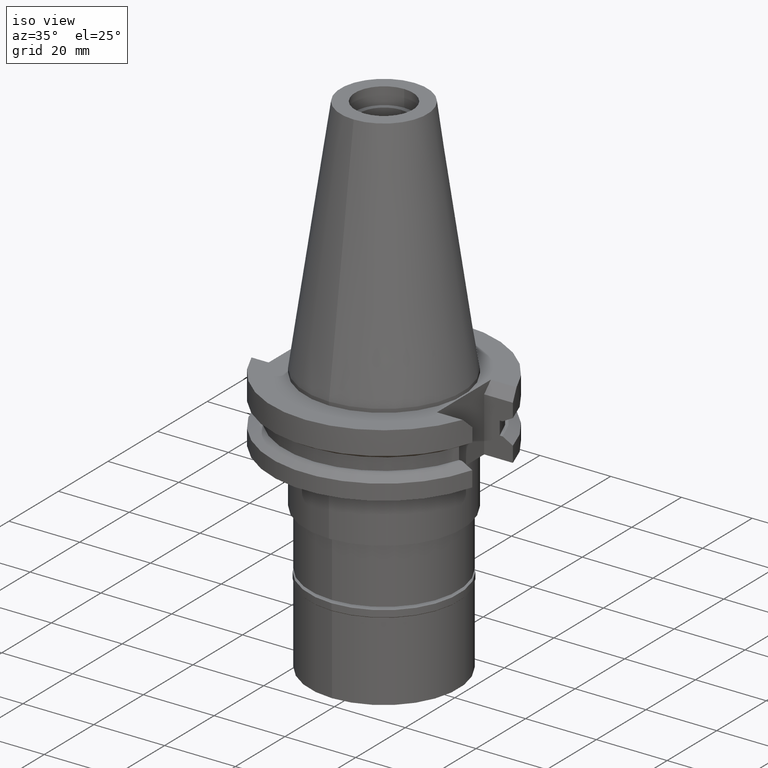
[diagram: clean part render]
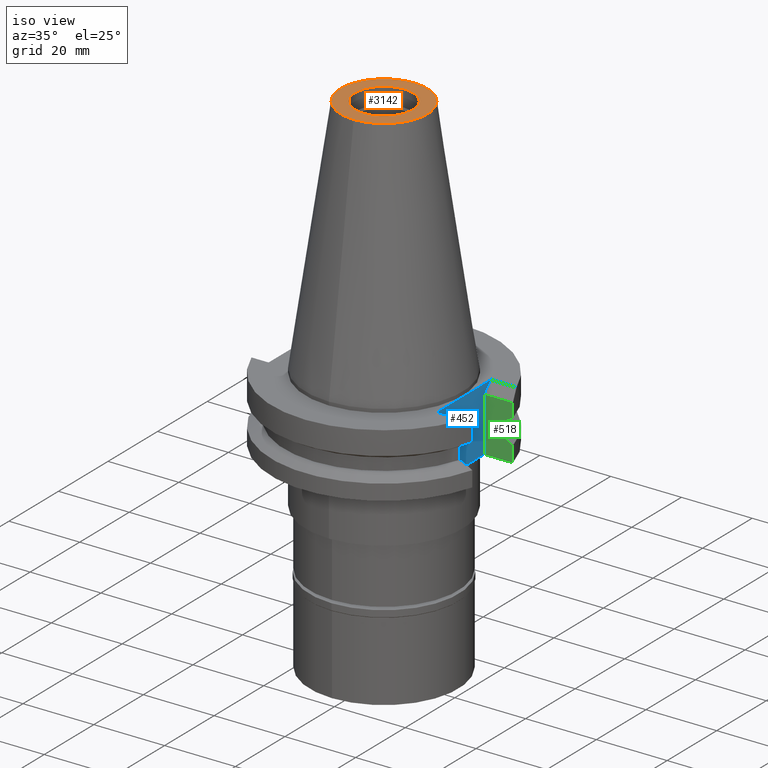
[diagram: same view with three faces highlighted in distinct colors, each labeled with its STEP entity id]
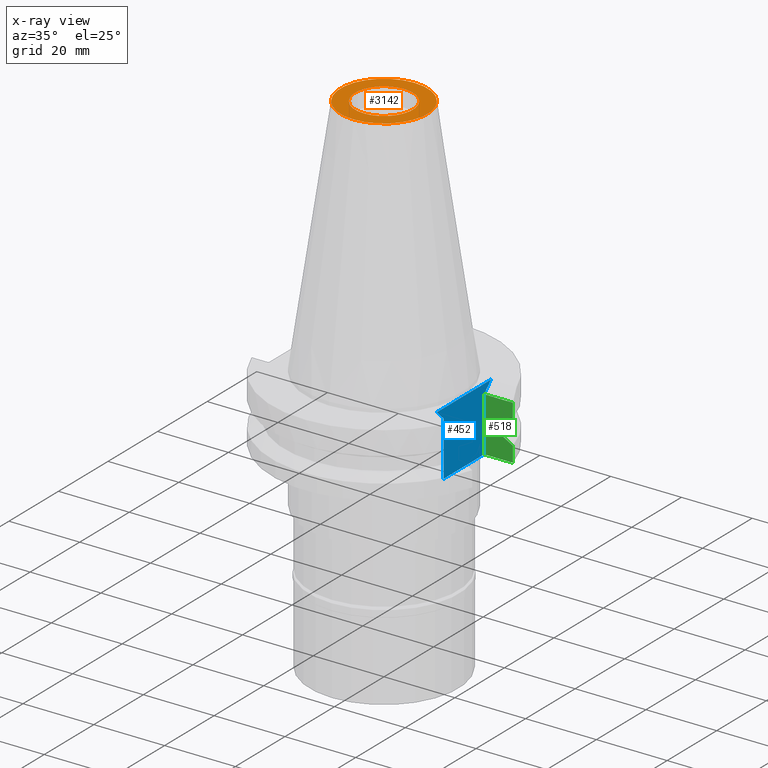
[diagram: x-ray of the same camera — body ghosted, the three highlighted faces saturated]
A machine part, iso view with three faces highlighted in distinct colors.
The next image is the same camera in x-ray (body ghosted, the three faces saturated) — at least one of them is partly hidden behind the body in this view.
Their STEP definitions:

[orange] entity #3142 — the highlighted planar face has unit normal (0, 0, -1).
#77 = DIRECTION ( 'NONE',  ( 0.0000000000000000000, 1.000000000000000000, 0.0000000000000000000 ) ) ;
#96 = DIRECTION ( 'NONE',  ( 0.0000000000000000000, -1.000000000000000000, 0.0000000000000000000 ) ) ;
#206 = DIRECTION ( 'NONE',  ( 0.0000000000000000000, 0.0000000000000000000, -1.000000000000000000 ) ) ;
#353 = CARTESIAN_POINT ( 'NONE',  ( 0.0000000000000000000, 8.160000000000000142, 68.25000000000000000 ) ) ;
#370 = CIRCLE ( 'NONE', #891, 8.160000000000000142 ) ;
#442 = CARTESIAN_POINT ( 'NONE',  ( 0.0000000000000000000, 0.0000000000000000000, 68.25000000000000000 ) ) ;
#476 = DIRECTION ( 'NONE',  ( 0.0000000000000000000, 0.0000000000000000000, -1.000000000000000000 ) ) ;
#529 = AXIS2_PLACEMENT_3D ( 'NONE', #1730, #476, #77 ) ;
#590 = ORIENTED_EDGE ( 'NONE', *, *, #755, .F. ) ;
#695 = CIRCLE ( 'NONE', #3196, 12.27186888070000137 ) ;
#728 = EDGE_CURVE ( 'NONE', #1497, #2953, #2339, .T. ) ;
#755 = EDGE_CURVE ( 'NONE', #915, #2225, #370, .T. ) ;
#836 = CARTESIAN_POINT ( 'NONE',  ( 0.0000000000000000000, 0.0000000000000000000, 68.25000000000000000 ) ) ;
#871 = FACE_BOUND ( 'NONE', #3069, .T. ) ;
#891 = AXIS2_PLACEMENT_3D ( 'NONE', #2372, #3039, #2249 ) ;
#911 = DIRECTION ( 'NONE',  ( 0.0000000000000000000, 0.0000000000000000000, 1.000000000000000000 ) ) ;
#915 = VERTEX_POINT ( 'NONE', #2525 ) ;
#1095 = DIRECTION ( 'NONE',  ( 0.0000000000000000000, 0.0000000000000000000, -1.000000000000000000 ) ) ;
#1140 = ORIENTED_EDGE ( 'NONE', *, *, #2029, .F. ) ;
#1158 = ORIENTED_EDGE ( 'NONE', *, *, #1189, .F. ) ;
#1189 = EDGE_CURVE ( 'NONE', #2225, #915, #1697, .T. ) ;
#1255 = EDGE_LOOP ( 'NONE', ( #2981, #1140 ) ) ;
#1497 = VERTEX_POINT ( 'NONE', #2899 ) ;
#1697 = CIRCLE ( 'NONE', #3248, 8.160000000000000142 ) ;
#1730 = CARTESIAN_POINT ( 'NONE',  ( 0.0000000000000000000, 0.0000000000000000000, 68.25000000000000000 ) ) ;
#1815 = DIRECTION ( 'NONE',  ( 0.0000000000000000000, -1.000000000000000000, 0.0000000000000000000 ) ) ;
#1936 = DIRECTION ( 'NONE',  ( 0.0000000000000000000, 1.000000000000000000, 0.0000000000000000000 ) ) ;
#2029 = EDGE_CURVE ( 'NONE', #2953, #1497, #695, .T. ) ;
#2225 = VERTEX_POINT ( 'NONE', #353 ) ;
#2249 = DIRECTION ( 'NONE',  ( 0.0000000000000000000, -1.000000000000000000, 0.0000000000000000000 ) ) ;
#2339 = CIRCLE ( 'NONE', #529, 12.27186888070000137 ) ;
#2341 = PLANE ( 'NONE',  #2979 ) ;
#2372 = CARTESIAN_POINT ( 'NONE',  ( 0.0000000000000000000, 0.0000000000000000000, 68.25000000000000000 ) ) ;
#2525 = CARTESIAN_POINT ( 'NONE',  ( 0.0000000000000000000, -8.160000000000000142, 68.25000000000000000 ) ) ;
#2790 = CARTESIAN_POINT ( 'NONE',  ( 0.0000000000000000000, -12.27186888070000137, 68.25000000000000000 ) ) ;
#2899 = CARTESIAN_POINT ( 'NONE',  ( 0.0000000000000000000, 12.27186888070000137, 68.25000000000000000 ) ) ;
#2953 = VERTEX_POINT ( 'NONE', #2790 ) ;
#2979 = AXIS2_PLACEMENT_3D ( 'NONE', #836, #1095, #1815 ) ;
#2981 = ORIENTED_EDGE ( 'NONE', *, *, #728, .F. ) ;
#3039 = DIRECTION ( 'NONE',  ( 0.0000000000000000000, 0.0000000000000000000, 1.000000000000000000 ) ) ;
#3069 = EDGE_LOOP ( 'NONE', ( #1158, #590 ) ) ;
#3142 = ADVANCED_FACE ( 'NONE', ( #3157, #871 ), #2341, .F. ) ;
#3157 = FACE_OUTER_BOUND ( 'NONE', #1255, .T. ) ;
#3196 = AXIS2_PLACEMENT_3D ( 'NONE', #442, #206, #96 ) ;
#3246 = CARTESIAN_POINT ( 'NONE',  ( 0.0000000000000000000, 0.0000000000000000000, 68.25000000000000000 ) ) ;
#3248 = AXIS2_PLACEMENT_3D ( 'NONE', #3246, #911, #1936 ) ;

[blue] entity #452 — the highlighted planar face has unit normal (1, 0, 0).
#78 = LINE ( 'NONE', #1084, #2362 ) ;
#100 = VECTOR ( 'NONE', #569, 1000.000000000000000 ) ;
#121 = LINE ( 'NONE', #898, #265 ) ;
#146 = CARTESIAN_POINT ( 'NONE',  ( 22.57000000000000028, 10.89000000000000057, -1.000000000000000000 ) ) ;
#240 = ORIENTED_EDGE ( 'NONE', *, *, #2325, .F. ) ;
#265 = VECTOR ( 'NONE', #2438, 1000.000000000000000 ) ;
#299 = FACE_OUTER_BOUND ( 'NONE', #2150, .T. ) ;
#334 = EDGE_CURVE ( 'NONE', #1374, #2935, #1839, .T. ) ;
#399 = CARTESIAN_POINT ( 'NONE',  ( 22.57000000000000028, -8.189999999999999503, -3.700000000000000178 ) ) ;
#419 = ORIENTED_EDGE ( 'NONE', *, *, #2737, .F. ) ;
#452 = ADVANCED_FACE ( 'NONE', ( #299 ), #2344, .T. ) ;
#569 = DIRECTION ( 'NONE',  ( 0.0000000000000000000, -1.000000000000000000, 0.0000000000000000000 ) ) ;
#586 = CARTESIAN_POINT ( 'NONE',  ( 22.57000000000000028, 10.89000000000000057, -1.000000000000000000 ) ) ;
#671 = ORIENTED_EDGE ( 'NONE', *, *, #1701, .F. ) ;
#747 = CARTESIAN_POINT ( 'NONE',  ( 22.57000000000000028, 10.89000000000000057, -1.000000000000000000 ) ) ;
#789 = ORIENTED_EDGE ( 'NONE', *, *, #334, .T. ) ;
#892 = DIRECTION ( 'NONE',  ( 0.0000000000000000000, -1.000000000000000000, 0.0000000000000000000 ) ) ;
#898 = CARTESIAN_POINT ( 'NONE',  ( 22.57000000000000028, 8.189999999999999503, -3.700000000000000178 ) ) ;
#928 = CARTESIAN_POINT ( 'NONE',  ( 22.57000000000000028, 8.189999999999999503, -19.05000000000000071 ) ) ;
#948 = AXIS2_PLACEMENT_3D ( 'NONE', #1591, #1766, #1263 ) ;
#1084 = CARTESIAN_POINT ( 'NONE',  ( 22.57000000000000028, -8.189999999999999503, -19.05000000000000071 ) ) ;
#1263 = DIRECTION ( 'NONE',  ( 0.0000000000000000000, 1.000000000000000000, 0.0000000000000000000 ) ) ;
#1374 = VERTEX_POINT ( 'NONE', #747 ) ;
#1390 = DIRECTION ( 'NONE',  ( 0.0000000000000000000, -0.7071067811865474617, -0.7071067811865474617 ) ) ;
#1420 = DIRECTION ( 'NONE',  ( 0.0000000000000000000, -0.7071067811865474617, 0.7071067811865474617 ) ) ;
#1591 = CARTESIAN_POINT ( 'NONE',  ( 22.57000000000000028, 0.0000000000000000000, 0.0000000000000000000 ) ) ;
#1643 = LINE ( 'NONE', #2161, #2717 ) ;
#1701 = EDGE_CURVE ( 'NONE', #1908, #2935, #3223, .T. ) ;
#1766 = DIRECTION ( 'NONE',  ( 1.000000000000000000, 0.0000000000000000000, 0.0000000000000000000 ) ) ;
#1782 = EDGE_CURVE ( 'NONE', #1374, #2875, #2913, .T. ) ;
#1789 = ORIENTED_EDGE ( 'NONE', *, *, #1782, .F. ) ;
#1839 = LINE ( 'NONE', #586, #100 ) ;
#1889 = ORIENTED_EDGE ( 'NONE', *, *, #3234, .F. ) ;
#1894 = VERTEX_POINT ( 'NONE', #2484 ) ;
#1908 = VERTEX_POINT ( 'NONE', #1974 ) ;
#1974 = CARTESIAN_POINT ( 'NONE',  ( 22.57000000000000028, -8.189999999999999503, -3.700000000000000178 ) ) ;
#2150 = EDGE_LOOP ( 'NONE', ( #1889, #1789, #789, #671, #419, #240 ) ) ;
#2161 = CARTESIAN_POINT ( 'NONE',  ( 22.57000000000000028, 8.189999999999999503, -19.05000000000000071 ) ) ;
#2311 = CARTESIAN_POINT ( 'NONE',  ( 22.57000000000000028, -10.89000000000000057, -1.000000000000000000 ) ) ;
#2325 = EDGE_CURVE ( 'NONE', #3253, #1894, #1643, .T. ) ;
#2344 = PLANE ( 'NONE',  #948 ) ;
#2362 = VECTOR ( 'NONE', #2877, 1000.000000000000000 ) ;
#2438 = DIRECTION ( 'NONE',  ( 0.0000000000000000000, 0.0000000000000000000, -1.000000000000000000 ) ) ;
#2484 = CARTESIAN_POINT ( 'NONE',  ( 22.57000000000000028, -8.189999999999999503, -19.05000000000000071 ) ) ;
#2610 = VECTOR ( 'NONE', #1420, 1000.000000000000114 ) ;
#2717 = VECTOR ( 'NONE', #892, 1000.000000000000000 ) ;
#2737 = EDGE_CURVE ( 'NONE', #1894, #1908, #78, .T. ) ;
#2875 = VERTEX_POINT ( 'NONE', #3201 ) ;
#2877 = DIRECTION ( 'NONE',  ( 0.0000000000000000000, 0.0000000000000000000, 1.000000000000000000 ) ) ;
#2913 = LINE ( 'NONE', #146, #3254 ) ;
#2935 = VERTEX_POINT ( 'NONE', #2311 ) ;
#3201 = CARTESIAN_POINT ( 'NONE',  ( 22.57000000000000028, 8.189999999999999503, -3.700000000000000178 ) ) ;
#3223 = LINE ( 'NONE', #399, #2610 ) ;
#3234 = EDGE_CURVE ( 'NONE', #2875, #3253, #121, .T. ) ;
#3253 = VERTEX_POINT ( 'NONE', #928 ) ;
#3254 = VECTOR ( 'NONE', #1390, 1000.000000000000114 ) ;

[green] entity #518 — the highlighted planar face has unit normal (0, 1, 0).
#121 = LINE ( 'NONE', #898, #265 ) ;
#179 = CARTESIAN_POINT ( 'NONE',  ( 28.70626002890957551, 8.189998716289446534, -8.697957601314895371 ) ) ;
#264 = VECTOR ( 'NONE', #3203, 1000.000000000000000 ) ;
#265 = VECTOR ( 'NONE', #2438, 1000.000000000000000 ) ;
#296 = LINE ( 'NONE', #1082, #897 ) ;
#361 = ORIENTED_EDGE ( 'NONE', *, *, #2345, .T. ) ;
#373 = VECTOR ( 'NONE', #1107, 1000.000000000000000 ) ;
#400 = CARTESIAN_POINT ( 'NONE',  ( 30.67550165959999831, 8.189999873741001579, -7.601334359228999915 ) ) ;
#402 = CARTESIAN_POINT ( 'NONE',  ( 22.57000000000000028, 8.189999999999999503, -19.05000000000000071 ) ) ;
#420 = LINE ( 'NONE', #402, #2985 ) ;
#423 = VERTEX_POINT ( 'NONE', #2780 ) ;
#437 = ORIENTED_EDGE ( 'NONE', *, *, #913, .T. ) ;
#440 = EDGE_LOOP ( 'NONE', ( #2113, #437, #1162, #1984, #2487, #2171, #361, #2011, #3229, #2857 ) ) ;
#490 = CARTESIAN_POINT ( 'NONE',  ( 22.57000000000000028, 8.189999999999999503, -19.05000000000000071 ) ) ;
#501 = B_SPLINE_CURVE_WITH_KNOTS ( 'NONE', 3,
 ( #1431, #2466, #179, #3218 ),
 .UNSPECIFIED., .F., .F.,
 ( 4, 4 ),
 ( 0.0000000000000000000, 1.000000000000000000 ),
 .UNSPECIFIED. ) ;
#518 = ADVANCED_FACE ( 'NONE', ( #2040 ), #3068, .F. ) ;
#574 = VERTEX_POINT ( 'NONE', #2522 ) ;
#624 = CARTESIAN_POINT ( 'NONE',  ( 30.67550162588999640, 8.189999999999999503, -3.700000000000000178 ) ) ;
#626 = EDGE_CURVE ( 'NONE', #423, #820, #1338, .T. ) ;
#674 = EDGE_CURVE ( 'NONE', #423, #574, #3288, .T. ) ;
#788 = CARTESIAN_POINT ( 'NONE',  ( 30.67550165959999831, 8.189999873730000601, -14.65366564072000166 ) ) ;
#820 = VERTEX_POINT ( 'NONE', #1529 ) ;
#832 = LINE ( 'NONE', #624, #373 ) ;
#839 = VECTOR ( 'NONE', #1979, 1000.000000000000000 ) ;
#897 = VECTOR ( 'NONE', #1063, 1000.000000000000000 ) ;
#898 = CARTESIAN_POINT ( 'NONE',  ( 22.57000000000000028, 8.189999999999999503, -3.700000000000000178 ) ) ;
#907 = LINE ( 'NONE', #400, #2621 ) ;
#913 = EDGE_CURVE ( 'NONE', #2745, #574, #2447, .T. ) ;
#928 = CARTESIAN_POINT ( 'NONE',  ( 22.57000000000000028, 8.189999999999999503, -19.05000000000000071 ) ) ;
#972 = EDGE_CURVE ( 'NONE', #1341, #2875, #832, .T. ) ;
#979 = DIRECTION ( 'NONE',  ( 1.000000000000000000, 0.0000000000000000000, 0.0000000000000000000 ) ) ;
#1063 = DIRECTION ( 'NONE',  ( 7.668471290186996841E-09, -2.872155806557998615E-08, 0.9999999999999995559 ) ) ;
#1082 = CARTESIAN_POINT ( 'NONE',  ( 30.67550162588999640, 8.189999999999999503, -19.05000000000000071 ) ) ;
#1107 = DIRECTION ( 'NONE',  ( -1.000000000000000000, 0.0000000000000000000, 0.0000000000000000000 ) ) ;
#1148 = EDGE_CURVE ( 'NONE', #3253, #1702, #420, .T. ) ;
#1162 = ORIENTED_EDGE ( 'NONE', *, *, #674, .F. ) ;
#1254 = CARTESIAN_POINT ( 'NONE',  ( 28.73104665319000262, 8.190000282372999152, -13.57124083493999933 ) ) ;
#1329 = CARTESIAN_POINT ( 'NONE',  ( 27.78617706758999972, 8.189999358852999123, -9.207500000000999663 ) ) ;
#1338 = LINE ( 'NONE', #2448, #264 ) ;
#1341 = VERTEX_POINT ( 'NONE', #2003 ) ;
#1398 = VERTEX_POINT ( 'NONE', #2783 ) ;
#1431 = CARTESIAN_POINT ( 'NONE',  ( 30.67550165959999831, 8.189999873741001579, -7.601334359228999915 ) ) ;
#1496 = DIRECTION ( 'NONE',  ( -0.0000000000000000000, 1.000000000000000000, 0.0000000000000000000 ) ) ;
#1498 = CARTESIAN_POINT ( 'NONE',  ( 28.09939284342999954, 8.189999358838999655, -13.22095730016999937 ) ) ;
#1517 = CARTESIAN_POINT ( 'NONE',  ( 27.78617706798999620, 8.189999358838999655, -13.04749999999999943 ) ) ;
#1529 = CARTESIAN_POINT ( 'NONE',  ( 26.96361066326000255, 8.189999999999999503, -9.207499999999999574 ) ) ;
#1669 = DIRECTION ( 'NONE',  ( -8.640691265596996120E-09, 3.236311574589998303E-08, 0.9999999999999994449 ) ) ;
#1702 = VERTEX_POINT ( 'NONE', #1890 ) ;
#1743 = CARTESIAN_POINT ( 'NONE',  ( 29.69414548143000232, 8.189999973438000680, -14.10664736164999944 ) ) ;
#1818 = VECTOR ( 'NONE', #2804, 1000.000000000000000 ) ;
#1890 = CARTESIAN_POINT ( 'NONE',  ( 30.67550162588999640, 8.189999999999999503, -19.05000000000000071 ) ) ;
#1979 = DIRECTION ( 'NONE',  ( 0.9999999999996962430, -7.794644236045972119E-07, 4.103107026326985890E-13 ) ) ;
#1984 = ORIENTED_EDGE ( 'NONE', *, *, #626, .T. ) ;
#2003 = CARTESIAN_POINT ( 'NONE',  ( 30.67550162588999640, 8.189999999999999503, -3.700000000000000178 ) ) ;
#2011 = ORIENTED_EDGE ( 'NONE', *, *, #972, .T. ) ;
#2013 = LINE ( 'NONE', #3045, #1818 ) ;
#2040 = FACE_OUTER_BOUND ( 'NONE', #440, .T. ) ;
#2113 = ORIENTED_EDGE ( 'NONE', *, *, #3126, .T. ) ;
#2171 = ORIENTED_EDGE ( 'NONE', *, *, #2894, .F. ) ;
#2345 = EDGE_CURVE ( 'NONE', #1398, #1341, #907, .T. ) ;
#2438 = DIRECTION ( 'NONE',  ( 0.0000000000000000000, 0.0000000000000000000, -1.000000000000000000 ) ) ;
#2447 = B_SPLINE_CURVE_WITH_KNOTS ( 'NONE', 3,
 ( #788, #3087, #1743, #1254, #1498, #1517 ),
 .UNSPECIFIED., .F., .F.,
 ( 4, 1, 1, 4 ),
 ( 0.0000000000000000000, 0.3333333333333000081, 0.6666666666667000474, 1.000000000000000000 ),
 .UNSPECIFIED. ) ;
#2448 = CARTESIAN_POINT ( 'NONE',  ( 26.96361066326000255, 8.189999999999999503, -13.04749999999999943 ) ) ;
#2466 = CARTESIAN_POINT ( 'NONE',  ( 29.66936065556240365, 8.189999747574754352, -8.162570082752392153 ) ) ;
#2487 = ORIENTED_EDGE ( 'NONE', *, *, #3043, .T. ) ;
#2522 = CARTESIAN_POINT ( 'NONE',  ( 27.78617706798999620, 8.189999358838999655, -13.04749999999999943 ) ) ;
#2553 = AXIS2_PLACEMENT_3D ( 'NONE', #490, #1496, #979 ) ;
#2621 = VECTOR ( 'NONE', #1669, 1000.000000000000114 ) ;
#2733 = CARTESIAN_POINT ( 'NONE',  ( 30.67550165959999831, 8.189999873730000601, -14.65366564072000166 ) ) ;
#2735 = VERTEX_POINT ( 'NONE', #1329 ) ;
#2745 = VERTEX_POINT ( 'NONE', #2733 ) ;
#2780 = CARTESIAN_POINT ( 'NONE',  ( 26.96361066326000255, 8.189999999999999503, -13.04749999999999943 ) ) ;
#2783 = CARTESIAN_POINT ( 'NONE',  ( 30.67550165959999831, 8.189999873741001579, -7.601334359228999915 ) ) ;
#2804 = DIRECTION ( 'NONE',  ( 0.9999999999996962430, -7.794477092218971773E-07, -1.025776757080996269E-12 ) ) ;
#2857 = ORIENTED_EDGE ( 'NONE', *, *, #1148, .T. ) ;
#2875 = VERTEX_POINT ( 'NONE', #3201 ) ;
#2894 = EDGE_CURVE ( 'NONE', #1398, #2735, #501, .T. ) ;
#2934 = DIRECTION ( 'NONE',  ( 1.000000000000000000, 0.0000000000000000000, 0.0000000000000000000 ) ) ;
#2985 = VECTOR ( 'NONE', #2934, 1000.000000000000000 ) ;
#3043 = EDGE_CURVE ( 'NONE', #820, #2735, #2013, .T. ) ;
#3045 = CARTESIAN_POINT ( 'NONE',  ( 26.96361066326000255, 8.189999999999999503, -9.207499999999999574 ) ) ;
#3059 = CARTESIAN_POINT ( 'NONE',  ( 26.96361066326000255, 8.189999999999999503, -13.04749999999999943 ) ) ;
#3068 = PLANE ( 'NONE',  #2553 ) ;
#3087 = CARTESIAN_POINT ( 'NONE',  ( 30.34664304932999812, 8.189999873730000601, -14.47022458762000063 ) ) ;
#3126 = EDGE_CURVE ( 'NONE', #1702, #2745, #296, .T. ) ;
#3201 = CARTESIAN_POINT ( 'NONE',  ( 22.57000000000000028, 8.189999999999999503, -3.700000000000000178 ) ) ;
#3203 = DIRECTION ( 'NONE',  ( 0.0000000000000000000, 0.0000000000000000000, 1.000000000000000000 ) ) ;
#3218 = CARTESIAN_POINT ( 'NONE',  ( 27.78617706758999972, 8.189999358852999123, -9.207500000000999663 ) ) ;
#3229 = ORIENTED_EDGE ( 'NONE', *, *, #3234, .T. ) ;
#3234 = EDGE_CURVE ( 'NONE', #2875, #3253, #121, .T. ) ;
#3253 = VERTEX_POINT ( 'NONE', #928 ) ;
#3288 = LINE ( 'NONE', #3059, #839 ) ;